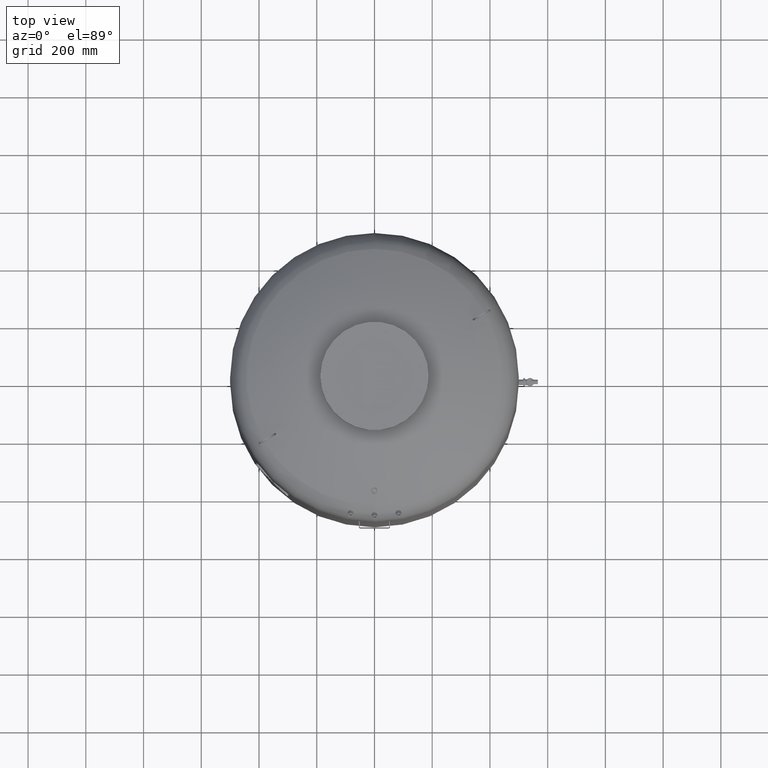
[diagram: clean part render]
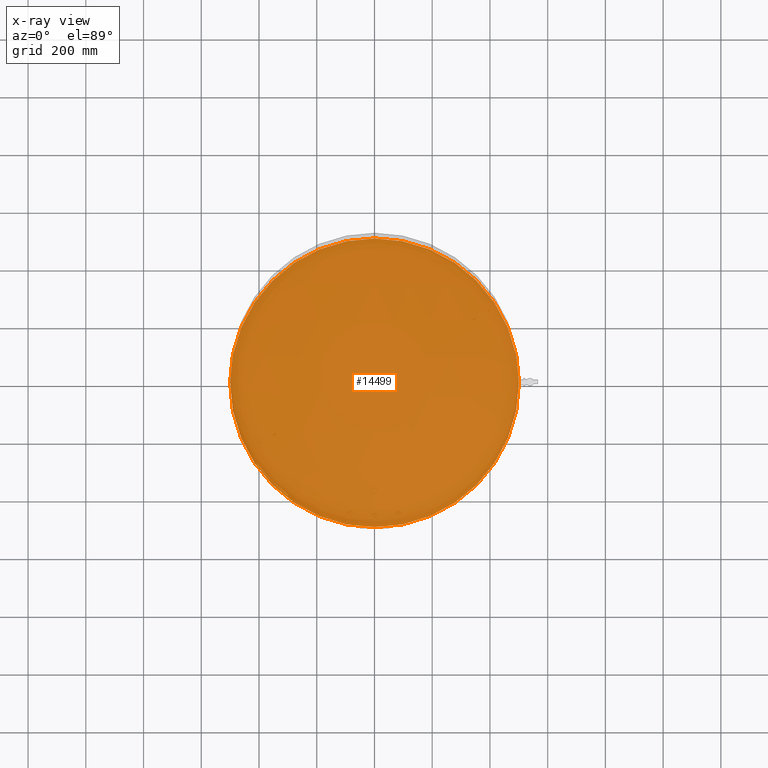
[diagram: x-ray — body ghosted, one internal face saturated and labeled with its STEP entity id]
A machine part, top view, then the same camera in x-ray: the body is ghosted and one INTERNAL B-rep face — a face not visible from any outside direction — is saturated and labeled: STEP entity #14499.
In plain terms, the highlighted planar face has unit normal (0, 0, 1).
Its self-contained STEP definition (entity closure, byte-faithful):
#14297=CARTESIAN_POINT('',(-500.0,-3.995410E-014,677.500000000000000));
#14298=VERTEX_POINT('',#14297);
#14307=CARTESIAN_POINT('',(500.0,2.127622E-014,677.500000000000110));
#14308=VERTEX_POINT('',#14307);
#14309=CARTESIAN_POINT('',(-2.917769E-014,-3.995410E-014,677.500000000000000));
#14310=DIRECTION('',(0.0,0.0,1.0));
#14311=DIRECTION('',(-1.0,0.0,0.0));
#14312=AXIS2_PLACEMENT_3D('',#14309,#14310,#14311);
#14313=CIRCLE('',#14312,500.0);
#14314=EDGE_CURVE('',#14308,#14298,#14313,.T.);
#14480=CARTESIAN_POINT('',(-2.917769E-014,-3.995410E-014,677.500000000000000));
#14481=DIRECTION('',(0.0,0.0,1.0));
#14482=DIRECTION('',(-1.0,0.0,0.0));
#14483=AXIS2_PLACEMENT_3D('',#14480,#14481,#14482);
#14484=CIRCLE('',#14483,500.0);
#14485=EDGE_CURVE('',#14298,#14308,#14484,.T.);
#14490=CARTESIAN_POINT('',(-250.0,-3.995410E-014,677.500000000000000));
#14491=DIRECTION('',(0.0,0.0,1.0));
#14492=DIRECTION('',(0.0,-1.0,0.0));
#14493=AXIS2_PLACEMENT_3D('',#14490,#14491,#14492);
#14494=PLANE('',#14493);
#14495=ORIENTED_EDGE('',*,*,#14485,.T.);
#14496=ORIENTED_EDGE('',*,*,#14314,.T.);
#14497=EDGE_LOOP('',(#14495,#14496));
#14498=FACE_OUTER_BOUND('',#14497,.T.);
#14499=ADVANCED_FACE('',(#14498),#14494,.T.);